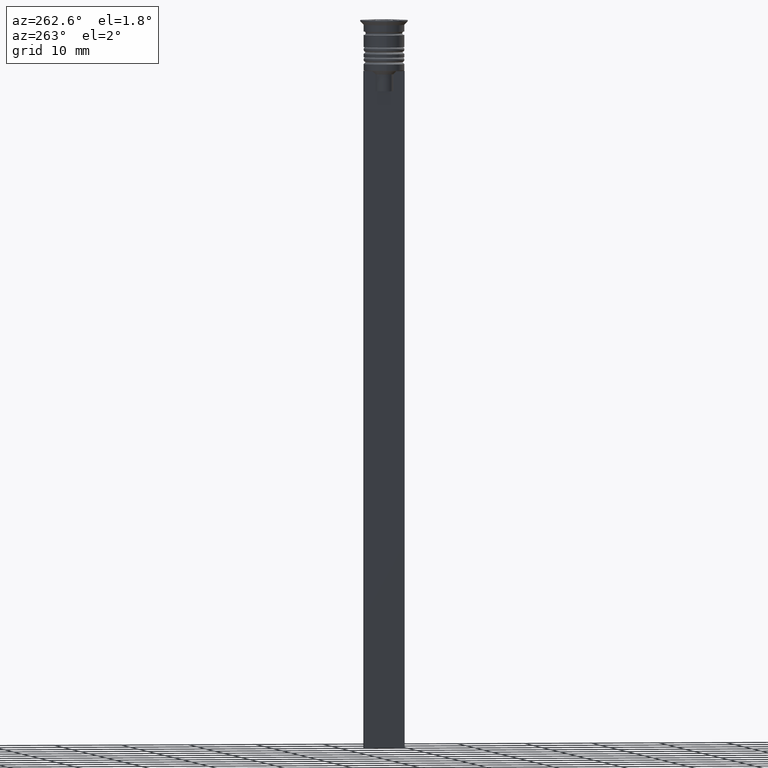
[diagram: clean part render]
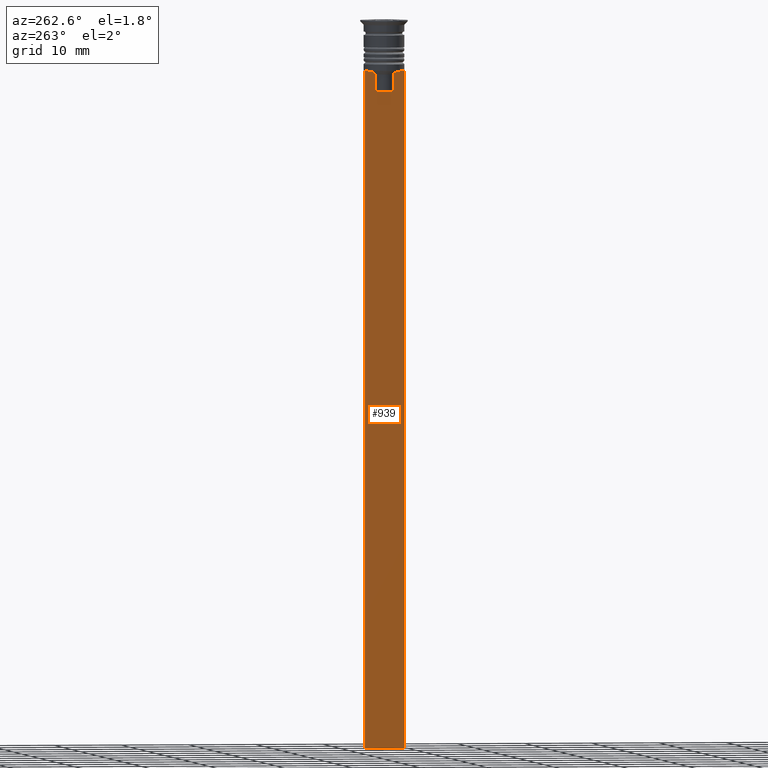
[diagram: same view with one face highlighted and labeled with its STEP entity id]
A machine part, auxiliary view. The second image highlights one B-rep face of the part: STEP entity #939.
In plain terms, the highlighted planar face has unit normal (-1, 0, 0).
Its self-contained STEP definition (entity closure, byte-faithful):
#8 = CARTESIAN_POINT ( 'NONE',  ( -0.5000000000000001110, -3.000000000000000000, -7.500000000000000000 ) ) ;
#115 = VERTEX_POINT ( 'NONE', #762 ) ;
#121 = ORIENTED_EDGE ( 'NONE', *, *, #2325, .F. ) ;
#136 = CARTESIAN_POINT ( 'NONE',  ( -0.5000000000000001110, 1.307669683062199217, -8.000000000000000000 ) ) ;
#152 = VERTEX_POINT ( 'NONE', #1005 ) ;
#170 = EDGE_CURVE ( 'NONE', #1686, #152, #187, .T. ) ;
#179 = LINE ( 'NONE', #8, #962 ) ;
#187 = B_SPLINE_CURVE_WITH_KNOTS ( 'NONE', 3,
 ( #302, #1394, #1200, #136 ),
 .UNSPECIFIED., .F., .F.,
 ( 4, 4 ),
 ( 0.003278537493109840491, 0.004003794023484932504 ),
 .UNSPECIFIED. ) ;
#193 = CARTESIAN_POINT ( 'NONE',  ( -0.5000000000000001110, -1.307669683062199217, -8.000000000000000000 ) ) ;
#215 = ORIENTED_EDGE ( 'NONE', *, *, #1611, .F. ) ;
#233 = LINE ( 'NONE', #1424, #426 ) ;
#253 = VECTOR ( 'NONE', #1136, 1000.000000000000000 ) ;
#262 = PLANE ( 'NONE',  #2088 ) ;
#266 = EDGE_CURVE ( 'NONE', #1323, #1686, #528, .T. ) ;
#271 = CARTESIAN_POINT ( 'NONE',  ( -0.5000000000000001110, -1.307669683062199217, 0.000000000000000000 ) ) ;
#282 = CARTESIAN_POINT ( 'NONE',  ( -0.5000000000000001110, 1.307669683062199217, 0.000000000000000000 ) ) ;
#292 = CARTESIAN_POINT ( 'NONE',  ( -0.5000000000000001110, -3.000000000000000000, -7.500000000000000000 ) ) ;
#300 = CARTESIAN_POINT ( 'NONE',  ( -0.5000000000000001110, -1.307669683062199217, -8.000000000000000000 ) ) ;
#302 = CARTESIAN_POINT ( 'NONE',  ( -0.5000000000000001110, 1.833030277982335532, -7.500000000000000000 ) ) ;
#309 = LINE ( 'NONE', #1919, #878 ) ;
#318 = LINE ( 'NONE', #282, #1260 ) ;
#322 = CARTESIAN_POINT ( 'NONE',  ( -0.5000000000000001110, -1.484307477388859153, -7.835011508197190722 ) ) ;
#327 = VERTEX_POINT ( 'NONE', #193 ) ;
#339 = ORIENTED_EDGE ( 'NONE', *, *, #1197, .F. ) ;
#380 = ORIENTED_EDGE ( 'NONE', *, *, #2245, .F. ) ;
#416 = LINE ( 'NONE', #292, #1065 ) ;
#426 = VECTOR ( 'NONE', #1467, 1000.000000000000000 ) ;
#432 = FACE_OUTER_BOUND ( 'NONE', #1565, .T. ) ;
#443 = CARTESIAN_POINT ( 'NONE',  ( -0.5000000000000001110, -3.000000000000000000, -107.5000000000000000 ) ) ;
#457 = CARTESIAN_POINT ( 'NONE',  ( -0.5000000000000001110, 2.856571371417139904, -7.500000000000000000 ) ) ;
#528 = LINE ( 'NONE', #914, #1969 ) ;
#533 = ORIENTED_EDGE ( 'NONE', *, *, #266, .F. ) ;
#564 = CARTESIAN_POINT ( 'NONE',  ( -0.5000000000000001110, 1.833030277982335532, -7.500000000000000000 ) ) ;
#636 = VERTEX_POINT ( 'NONE', #1206 ) ;
#706 = ORIENTED_EDGE ( 'NONE', *, *, #1284, .F. ) ;
#719 = EDGE_CURVE ( 'NONE', #1501, #1323, #179, .T. ) ;
#744 = DIRECTION ( 'NONE',  ( -1.000000000000000000, 0.000000000000000000, 0.000000000000000000 ) ) ;
#754 = CARTESIAN_POINT ( 'NONE',  ( -0.5000000000000001110, -3.000000000000000000, -1.417237469701779329 ) ) ;
#762 = CARTESIAN_POINT ( 'NONE',  ( -0.5000000000000001110, -2.856571371417139904, -7.500000000000000000 ) ) ;
#788 = CARTESIAN_POINT ( 'NONE',  ( -0.5000000000000001110, -3.000000000000000000, -1.417237469701779329 ) ) ;
#849 = CARTESIAN_POINT ( 'NONE',  ( -0.5000000000000001110, 3.000000000000000000, -7.500000000000000000 ) ) ;
#863 = DIRECTION ( 'NONE',  ( 0.000000000000000000, 0.000000000000000000, -1.000000000000000000 ) ) ;
#875 = VECTOR ( 'NONE', #2188, 1000.000000000000000 ) ;
#878 = VECTOR ( 'NONE', #863, 1000.000000000000000 ) ;
#902 = CARTESIAN_POINT ( 'NONE',  ( -0.5000000000000001110, -3.000000000000000000, -7.500000000000000000 ) ) ;
#914 = CARTESIAN_POINT ( 'NONE',  ( -0.5000000000000001110, -3.000000000000000000, -7.500000000000000000 ) ) ;
#931 = ORIENTED_EDGE ( 'NONE', *, *, #1936, .F. ) ;
#939 = ADVANCED_FACE ( 'NONE', ( #432 ), #262, .T. ) ;
#962 = VECTOR ( 'NONE', #1080, 1000.000000000000000 ) ;
#972 = LINE ( 'NONE', #788, #1513 ) ;
#1005 = CARTESIAN_POINT ( 'NONE',  ( -0.5000000000000001110, 1.307669683062199217, -8.000000000000000000 ) ) ;
#1008 = VERTEX_POINT ( 'NONE', #1714 ) ;
#1018 = LINE ( 'NONE', #271, #1660 ) ;
#1052 = EDGE_CURVE ( 'NONE', #1947, #327, #1018, .T. ) ;
#1065 = VECTOR ( 'NONE', #1658, 1000.000000000000000 ) ;
#1080 = DIRECTION ( 'NONE',  ( 0.000000000000000000, -1.000000000000000000, 0.000000000000000000 ) ) ;
#1136 = DIRECTION ( 'NONE',  ( 0.000000000000000000, 1.000000000000000000, 0.000000000000000000 ) ) ;
#1142 = ORIENTED_EDGE ( 'NONE', *, *, #719, .F. ) ;
#1145 = DIRECTION ( 'NONE',  ( 0.000000000000000000, 0.000000000000000000, -1.000000000000000000 ) ) ;
#1187 = CARTESIAN_POINT ( 'NONE',  ( -0.5000000000000001110, -1.833030277982335532, -7.500000000000000000 ) ) ;
#1197 = EDGE_CURVE ( 'NONE', #1302, #1947, #233, .T. ) ;
#1200 = CARTESIAN_POINT ( 'NONE',  ( -0.5000000000000001110, 1.484355510416485391, -7.834966642958598015 ) ) ;
#1206 = CARTESIAN_POINT ( 'NONE',  ( -0.5000000000000001110, -3.000000000000000000, -107.5000000000000000 ) ) ;
#1260 = VECTOR ( 'NONE', #1380, 1000.000000000000000 ) ;
#1284 = EDGE_CURVE ( 'NONE', #2136, #115, #416, .T. ) ;
#1291 = ORIENTED_EDGE ( 'NONE', *, *, #1405, .F. ) ;
#1302 = VERTEX_POINT ( 'NONE', #1675 ) ;
#1323 = VERTEX_POINT ( 'NONE', #457 ) ;
#1357 = CARTESIAN_POINT ( 'NONE',  ( -0.5000000000000001110, -1.307669683062199217, -10.49999999999999822 ) ) ;
#1380 = DIRECTION ( 'NONE',  ( 0.000000000000000000, 0.000000000000000000, -1.000000000000000000 ) ) ;
#1394 = CARTESIAN_POINT ( 'NONE',  ( -0.5000000000000001110, 1.659046061654642523, -7.667851756010361619 ) ) ;
#1405 = EDGE_CURVE ( 'NONE', #1008, #636, #972, .T. ) ;
#1424 = CARTESIAN_POINT ( 'NONE',  ( -0.5000000000000001110, 1.399999999999997691, -10.49999999999999822 ) ) ;
#1447 = VERTEX_POINT ( 'NONE', #2119 ) ;
#1459 = DIRECTION ( 'NONE',  ( 0.000000000000000000, 0.000000000000000000, 1.000000000000000000 ) ) ;
#1467 = DIRECTION ( 'NONE',  ( 0.000000000000000000, -1.000000000000000000, 0.000000000000000000 ) ) ;
#1492 = B_SPLINE_CURVE_WITH_KNOTS ( 'NONE', 3,
 ( #300, #322, #2115, #1187 ),
 .UNSPECIFIED., .F., .F.,
 ( 4, 4 ),
 ( 0.007225659348748070081, 0.007950554640278040958 ),
 .UNSPECIFIED. ) ;
#1501 = VERTEX_POINT ( 'NONE', #849 ) ;
#1513 = VECTOR ( 'NONE', #1145, 1000.000000000000000 ) ;
#1565 = EDGE_LOOP ( 'NONE', ( #1619, #533, #1142, #2004, #380, #1291, #215, #706, #931, #2227, #339, #121 ) ) ;
#1611 = EDGE_CURVE ( 'NONE', #115, #1008, #1617, .T. ) ;
#1617 = LINE ( 'NONE', #902, #875 ) ;
#1619 = ORIENTED_EDGE ( 'NONE', *, *, #170, .F. ) ;
#1658 = DIRECTION ( 'NONE',  ( 0.000000000000000000, -1.000000000000000000, 0.000000000000000000 ) ) ;
#1660 = VECTOR ( 'NONE', #1894, 1000.000000000000000 ) ;
#1675 = CARTESIAN_POINT ( 'NONE',  ( -0.5000000000000001110, 1.307669683062199217, -10.49999999999999822 ) ) ;
#1686 = VERTEX_POINT ( 'NONE', #564 ) ;
#1714 = CARTESIAN_POINT ( 'NONE',  ( -0.5000000000000001110, -3.000000000000000000, -7.500000000000000000 ) ) ;
#1809 = CARTESIAN_POINT ( 'NONE',  ( -0.5000000000000001110, -1.833030277982335532, -7.500000000000000000 ) ) ;
#1867 = EDGE_CURVE ( 'NONE', #1501, #1447, #309, .T. ) ;
#1894 = DIRECTION ( 'NONE',  ( -0.000000000000000000, -0.000000000000000000, 1.000000000000000000 ) ) ;
#1919 = CARTESIAN_POINT ( 'NONE',  ( -0.5000000000000001110, 3.000000000000000000, -1.417237469701779329 ) ) ;
#1936 = EDGE_CURVE ( 'NONE', #327, #2136, #1492, .T. ) ;
#1947 = VERTEX_POINT ( 'NONE', #1357 ) ;
#1969 = VECTOR ( 'NONE', #1989, 1000.000000000000000 ) ;
#1989 = DIRECTION ( 'NONE',  ( 0.000000000000000000, -1.000000000000000000, 0.000000000000000000 ) ) ;
#2004 = ORIENTED_EDGE ( 'NONE', *, *, #1867, .T. ) ;
#2088 = AXIS2_PLACEMENT_3D ( 'NONE', #754, #744, #1459 ) ;
#2115 = CARTESIAN_POINT ( 'NONE',  ( -0.5000000000000001110, -1.659011726860414093, -7.667884880598472286 ) ) ;
#2119 = CARTESIAN_POINT ( 'NONE',  ( -0.5000000000000001110, 3.000000000000000000, -107.5000000000000000 ) ) ;
#2136 = VERTEX_POINT ( 'NONE', #1809 ) ;
#2185 = LINE ( 'NONE', #443, #253 ) ;
#2188 = DIRECTION ( 'NONE',  ( 0.000000000000000000, -1.000000000000000000, 0.000000000000000000 ) ) ;
#2227 = ORIENTED_EDGE ( 'NONE', *, *, #1052, .F. ) ;
#2245 = EDGE_CURVE ( 'NONE', #636, #1447, #2185, .T. ) ;
#2325 = EDGE_CURVE ( 'NONE', #152, #1302, #318, .T. ) ;